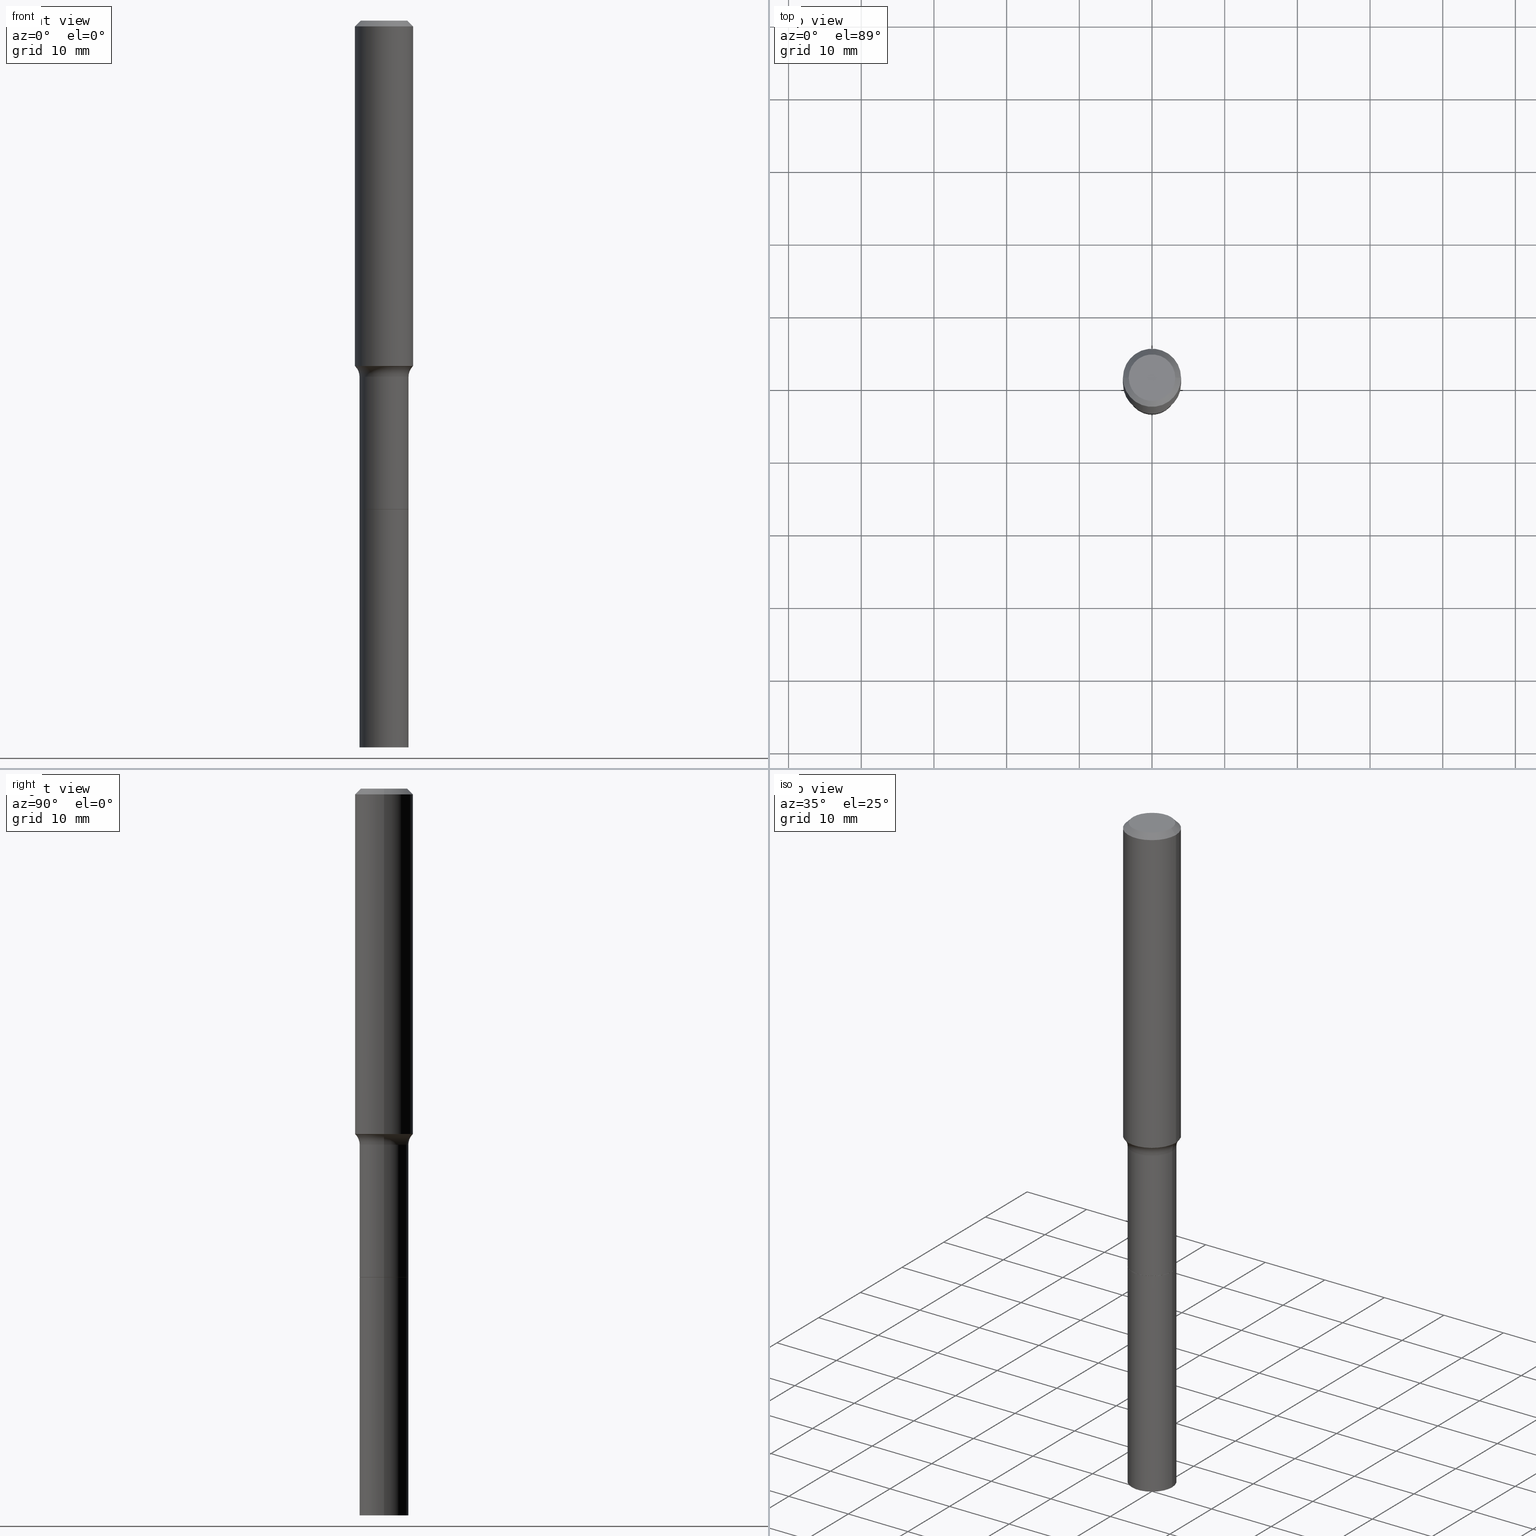
[diagram: canonical four-view strip — front | top / right | iso, engineering-drawing reading convention]
A machine part, canonical four-view strip (front | top / right | iso — engineering-drawing reading convention). The complete STEP part file that produces these views, byte-faithful:
ISO-10303-21;
HEADER;
FILE_DESCRIPTION (( 'STEP AP203' ),
    '1' );
FILE_NAME ('58891.STEP',
    '2025-04-01T15:26:33',
    ( '' ),
    ( '' ),
    'SwSTEP 2.0',
    'SolidWorks 2024',
    '' );
FILE_SCHEMA (( 'CONFIG_CONTROL_DESIGN' ));
ENDSEC;

DATA;
#1 = DIRECTION ( 'NONE',  ( 1.000000000000000000, -6.982962677686271444E-15, 0.000000000000000000 ) ) ;
#2 = AXIS2_PLACEMENT_3D ( 'NONE', #318, #120, #84 ) ;
#3 = VECTOR ( 'NONE', #135, 39.37007874015748143 ) ;
#4 = DIRECTION ( 'NONE',  ( 1.000000000000000000, -6.982962677686260400E-15, 0.000000000000000000 ) ) ;
#5 = DATE_AND_TIME ( #518, #390 ) ;
#6 = DIRECTION ( 'NONE',  ( 1.000000000000000000, -6.982962677686271444E-15, 0.000000000000000000 ) ) ;
#7 = ORIENTED_EDGE ( 'NONE', *, *, #244, .T. ) ;
#8 = EDGE_CURVE ( 'NONE', #509, #289, #37, .T. ) ;
#9 = EDGE_CURVE ( 'NONE', #55, #178, #395, .T. ) ;
#10 = DIRECTION ( 'NONE',  ( 1.000000000000000000, -6.982962677686264344E-15, 0.000000000000000000 ) ) ;
#11 = VECTOR ( 'NONE', #81, 39.37007874015748143 ) ;
#12 = ORIENTED_EDGE ( 'NONE', *, *, #23, .F. ) ;
#13 = CC_DESIGN_PERSON_AND_ORGANIZATION_ASSIGNMENT ( #404, #124, ( #90 ) ) ;
#14 = AXIS2_PLACEMENT_3D ( 'NONE', #470, #64, #26 ) ;
#15 = ORIENTED_EDGE ( 'NONE', *, *, #474, .T. ) ;
#16 = ORIENTED_EDGE ( 'NONE', *, *, #189, .F. ) ;
#17 = AXIS2_PLACEMENT_3D ( 'NONE', #507, #188, #309 ) ;
#18 = CIRCLE ( 'NONE', #389, 0.1575000000000000011 ) ;
#19 = ORIENTED_EDGE ( 'NONE', *, *, #71, .T. ) ;
#20 = CC_DESIGN_SECURITY_CLASSIFICATION ( #90, ( #171 ) ) ;
#21 = EDGE_LOOP ( 'NONE', ( #431, #294, #167, #405 ) ) ;
#22 = DIRECTION ( 'NONE',  ( 1.000000000000000000, -6.982962677686267499E-15, 4.876176775795936353E-29 ) ) ;
#23 = EDGE_CURVE ( 'NONE', #373, #168, #302, .T. ) ;
#24 = EDGE_CURVE ( 'NONE', #377, #101, #141, .T. ) ;
#25 = DIRECTION ( 'NONE',  ( 1.000000000000000000, -6.982962677686268288E-15, 0.000000000000000000 ) ) ;
#26 = DIRECTION ( 'NONE',  ( 1.000000000000000000, -6.982962677686264344E-15, 0.000000000000000000 ) ) ;
#27 = CARTESIAN_POINT ( 'NONE',  ( -4.719860820353096954E-47, 6.738710358733626979E-33, 1.930043355456227940E-18 ) ) ;
#28 = VECTOR ( 'NONE', #435, 39.37007874015748143 ) ;
#29 = CARTESIAN_POINT ( 'NONE',  ( 9.627810689950883669E-29, -1.374596203102546341E-14, -3.937000000000000277 ) ) ;
#30 = CARTESIAN_POINT ( 'NONE',  ( -0.1323000000000000009, -8.302745318671926953E-15, -2.648000000000000131 ) ) ;
#31 = CARTESIAN_POINT ( 'NONE',  ( 0.1575000000000000011, -1.190510096822576026E-15, -0.03150000000000022227 ) ) ;
#32 = PERSON_AND_ORGANIZATION ( #361, #358 ) ;
#33 = CARTESIAN_POINT ( 'NONE',  ( 4.717309327131129015E-29, -6.735067502628427403E-15, -1.929000000000000048 ) ) ;
#34 = DIRECTION ( 'NONE',  ( 1.000000000000000000, -6.982962677686260400E-15, 0.000000000000000000 ) ) ;
#35 = AXIS2_PLACEMENT_3D ( 'NONE', #164, #412, #488 ) ;
#36 = DIRECTION ( 'NONE',  ( -6.982962677686266711E-15, -1.000000000000000000, 3.491481338843145583E-15 ) ) ;
#37 = CIRCLE ( 'NONE', #102, 0.1327999999999999181 ) ;
#38 = DIRECTION ( 'NONE',  ( -2.445468806185136597E-29, 3.491481338843145583E-15, 1.000000000000000000 ) ) ;
#39 = FACE_OUTER_BOUND ( 'NONE', #237, .T. ) ;
#40 = APPROVAL ( #345, 'UNSPECIFIED' ) ;
#41 = DIRECTION ( 'NONE',  ( -2.445468806185136597E-29, 3.491481338843145583E-15, 1.000000000000000000 ) ) ;
#42 = MECHANICAL_CONTEXT ( 'NONE', #406, 'mechanical' ) ;
#43 = AXIS2_PLACEMENT_3D ( 'NONE', #160, #350, #401 ) ;
#44 = LOCAL_TIME ( 11, 26, 33.00000000000000000, #360 ) ;
#45 = DIRECTION ( 'NONE',  ( -2.445468806185136597E-29, 3.491481338843145583E-15, 1.000000000000000000 ) ) ;
#46 = EDGE_CURVE ( 'NONE', #494, #366, #508, .T. ) ;
#47 = ORIENTED_EDGE ( 'NONE', *, *, #510, .T. ) ;
#48 = ADVANCED_FACE ( 'NONE', ( #505 ), #250, .T. ) ;
#49 = FACE_OUTER_BOUND ( 'NONE', #468, .T. ) ;
#50 = ORIENTED_EDGE ( 'NONE', *, *, #133, .T. ) ;
#51 = AXIS2_PLACEMENT_3D ( 'NONE', #452, #247, #407 ) ;
#52 = ORIENTED_EDGE ( 'NONE', *, *, #296, .F. ) ;
#53 = SHAPE_DEFINITION_REPRESENTATION ( #96, #56 ) ;
#54 = VERTEX_POINT ( 'NONE', #140 ) ;
#55 = VERTEX_POINT ( 'NONE', #305 ) ;
#56 = ADVANCED_BREP_SHAPE_REPRESENTATION ( '58891', ( #455, #99, #372 ), #234 ) ;
#57 = FACE_OUTER_BOUND ( 'NONE', #246, .T. ) ;
#58 = EDGE_LOOP ( 'NONE', ( #7, #15, #74, #207 ) ) ;
#59 = ADVANCED_FACE ( 'NONE', ( #303 ), #300, .T. ) ;
#60 = LINE ( 'NONE', #476, #445 ) ;
#61 = VECTOR ( 'NONE', #240, 39.37007874015748143 ) ;
#62 = ORIENTED_EDGE ( 'NONE', *, *, #245, .T. ) ;
#63 = LINE ( 'NONE', #382, #190 ) ;
#64 = DIRECTION ( 'NONE',  ( -2.445468806185136597E-29, 3.491481338843145583E-15, 1.000000000000000000 ) ) ;
#65 = DIRECTION ( 'NONE',  ( -2.445468806185136597E-29, 3.491481338843145583E-15, 1.000000000000000000 ) ) ;
#66 = DIRECTION ( 'NONE',  ( 1.000000000000000000, -6.982962677686265133E-15, 0.000000000000000000 ) ) ;
#67 = FACE_OUTER_BOUND ( 'NONE', #256, .T. ) ;
#68 = CARTESIAN_POINT ( 'NONE',  ( 6.475601398778242345E-29, -9.245442585256650509E-15, -2.648000000000000131 ) ) ;
#69 = DIRECTION ( 'NONE',  ( -1.000000000000000000, 6.982962677686265922E-15, 0.000000000000000000 ) ) ;
#70 = ORIENTED_EDGE ( 'NONE', *, *, #46, .F. ) ;
#71 = EDGE_CURVE ( 'NONE', #285, #414, #92, .T. ) ;
#72 = AXIS2_PLACEMENT_3D ( 'NONE', #33, #346, #304 ) ;
#73 = DIRECTION ( 'NONE',  ( 1.000000000000000000, -6.982962677686265922E-15, 4.876176775795935793E-29 ) ) ;
#74 = ORIENTED_EDGE ( 'NONE', *, *, #413, .F. ) ;
#75 = AXIS2_PLACEMENT_3D ( 'NONE', #29, #181, #98 ) ;
#76 = DIRECTION ( 'NONE',  ( -2.445468806185136597E-29, 3.491481338843145583E-15, 1.000000000000000000 ) ) ;
#77 = DIRECTION ( 'NONE',  ( -2.445468806185136877E-29, 3.491481338843145188E-15, 1.000000000000000000 ) ) ;
#78 = CARTESIAN_POINT ( 'NONE',  ( 0.000000000000000000, 0.000000000000000000, 0.000000000000000000 ) ) ;
#79 = ADVANCED_FACE ( 'NONE', ( #308 ), #381, .F. ) ;
#80 = CARTESIAN_POINT ( 'NONE',  ( 0.1327999999999999181, -7.662404946225163231E-15, -1.929000000000000048 ) ) ;
#81 = DIRECTION ( 'NONE',  ( -2.445468806185136877E-29, 3.491481338843145188E-15, 1.000000000000000000 ) ) ;
#82 = CIRCLE ( 'NONE', #146, 0.1328000000000000014 ) ;
#83 = CC_DESIGN_APPROVAL ( #278, ( #90 ) ) ;
#84 = DIRECTION ( 'NONE',  ( 1.000000000000000000, -6.982962677686267499E-15, 4.876176775795936353E-29 ) ) ;
#85 = APPROVAL_DATE_TIME ( #491, #278 ) ;
#86 = ORIENTED_EDGE ( 'NONE', *, *, #111, .T. ) ;
#87 = PERSON_AND_ORGANIZATION_ROLE ( 'creator' ) ;
#88 = ORIENTED_EDGE ( 'NONE', *, *, #295, .F. ) ;
#89 = CIRCLE ( 'NONE', #503, 0.1328000000000000014 ) ;
#90 = SECURITY_CLASSIFICATION ( '', '', #165 ) ;
#91 = DATE_AND_TIME ( #204, #44 ) ;
#92 = CIRCLE ( 'NONE', #119, 0.1323000000000000009 ) ;
#93 = ORIENTED_EDGE ( 'NONE', *, *, #23, .T. ) ;
#94 = ORIENTED_EDGE ( 'NONE', *, *, #281, .T. ) ;
#95 = EDGE_LOOP ( 'NONE', ( #94, #253 ) ) ;
#96 = PRODUCT_DEFINITION_SHAPE ( 'NONE', 'NONE',  #396 ) ;
#97 = CC_DESIGN_APPROVAL ( #176, ( #171 ) ) ;
#98 = DIRECTION ( 'NONE',  ( 1.000000000000000000, -6.982962677686259611E-15, 0.000000000000000000 ) ) ;
#99 = MANIFOLD_SOLID_BREP ( 'Body-Move/Copy2[2]', #127 ) ;
#100 = LINE ( 'NONE', #466, #408 ) ;
#101 = VERTEX_POINT ( 'NONE', #106 ) ;
#102 = AXIS2_PLACEMENT_3D ( 'NONE', #143, #500, #25 ) ;
#103 = EDGE_CURVE ( 'NONE', #55, #494, #228, .T. ) ;
#104 = ORIENTED_EDGE ( 'NONE', *, *, #332, .F. ) ;
#105 = CARTESIAN_POINT ( 'NONE',  ( -0.1328000000000000014, -7.045781420518414556E-15, -2.647499999999999964 ) ) ;
#106 = CARTESIAN_POINT ( 'NONE',  ( -0.1328000000000002234, -1.055210155505163976E-14, -3.937000000000000277 ) ) ;
#107 = CIRCLE ( 'NONE', #417, 0.1260000000000000009 ) ;
#108 = DIRECTION ( 'NONE',  ( -2.445468806185136597E-29, 3.491481338843145583E-15, 1.000000000000000000 ) ) ;
#109 = EDGE_LOOP ( 'NONE', ( #416, #47, #70, #213 ) ) ;
#110 = DIRECTION ( 'NONE',  ( -2.445468806185136597E-29, 3.491481338843145583E-15, 1.000000000000000000 ) ) ;
#111 = EDGE_CURVE ( 'NONE', #285, #147, #297, .T. ) ;
#112 = DIRECTION ( 'NONE',  ( 1.000000000000000000, -6.982962677686265922E-15, 4.876281427513067258E-29 ) ) ;
#113 = DIRECTION ( 'NONE',  ( 0.000000000000000000, 0.000000000000000000, 1.000000000000000000 ) ) ;
#114 = UNCERTAINTY_MEASURE_WITH_UNIT (LENGTH_MEASURE( 1.000000000000000082E-05 ), #434, 'distance_accuracy_value', 'NONE');
#115 = DIRECTION ( 'NONE',  ( -0.7071067811864267805, 7.493145998869918709E-15, 0.7071067811866682540 ) ) ;
#116 = PLANE ( 'NONE',  #263 ) ;
#117 = COORDINATED_UNIVERSAL_TIME_OFFSET ( 5, 0, .BEHIND. ) ;
#118 = AXIS2_PLACEMENT_3D ( 'NONE', #355, #122, #482 ) ;
#119 = AXIS2_PLACEMENT_3D ( 'NONE', #258, #512, #34 ) ;
#120 = DIRECTION ( 'NONE',  ( -2.445468806185136597E-29, 3.491481338843145583E-15, 1.000000000000000000 ) ) ;
#121 = CARTESIAN_POINT ( 'NONE',  ( -0.1323000000000000009, -8.305394545846037365E-15, -2.648000000000000131 ) ) ;
#122 = DIRECTION ( 'NONE',  ( 7.105427357601001859E-15, 1.000000000000000000, -3.491481338843145583E-15 ) ) ;
#123 = LINE ( 'NONE', #243, #315 ) ;
#124 = PERSON_AND_ORGANIZATION_ROLE ( 'classification_officer' ) ;
#125 = AXIS2_PLACEMENT_3D ( 'NONE', #261, #139, #69 ) ;
#126 = ORIENTED_EDGE ( 'NONE', *, *, #433, .T. ) ;
#127 = CLOSED_SHELL ( 'NONE', ( #257, #48, #506, #490, #293, #357, #151, #386, #331, #170, #430, #451, #280, #371 ) ) ;
#128 = DESIGN_CONTEXT ( 'detailed design', #436, 'design' ) ;
#129 = ORIENTED_EDGE ( 'NONE', *, *, #348, .T. ) ;
#130 = ORIENTED_EDGE ( 'NONE', *, *, #227, .F. ) ;
#131 = CONICAL_SURFACE ( 'NONE', #51, 0.1323000000000000009, 0.7853981633972775267 ) ;
#132 = ORIENTED_EDGE ( 'NONE', *, *, #152, .T. ) ;
#133 = EDGE_CURVE ( 'NONE', #168, #289, #481, .T. ) ;
#134 = ORIENTED_EDGE ( 'NONE', *, *, #262, .T. ) ;
#135 = DIRECTION ( 'NONE',  ( 0.7071067811865449082, -7.319954787623246579E-15, -0.7071067811865501263 ) ) ;
#136 = DIRECTION ( 'NONE',  ( 1.000000000000000000, -6.982962677686264344E-15, 0.000000000000000000 ) ) ;
#137 = TOROIDAL_SURFACE ( 'NONE', #284, 0.2127999999999999059, 0.08000000000000007105 ) ;
#138 = CARTESIAN_POINT ( 'NONE',  ( 7.703226739483234853E-31, -1.099816621735598648E-16, -0.03150000000000022227 ) ) ;
#139 = DIRECTION ( 'NONE',  ( 2.445468806185136597E-29, -3.491481338843145583E-15, -1.000000000000000000 ) ) ;
#140 = CARTESIAN_POINT ( 'NONE',  ( -0.1328000000000000014, -1.055210155505164292E-14, -2.648000000000000131 ) ) ;
#141 = CIRCLE ( 'NONE', #75, 0.1328000000000002234 ) ;
#142 = FACE_OUTER_BOUND ( 'NONE', #292, .T. ) ;
#143 = CARTESIAN_POINT ( 'NONE',  ( 4.717309327131129015E-29, -6.735067502628427403E-15, -1.929000000000000048 ) ) ;
#144 = DIRECTION ( 'NONE',  ( -2.445468806185136597E-29, 3.491481338843145583E-15, 1.000000000000000000 ) ) ;
#145 = CC_DESIGN_PERSON_AND_ORGANIZATION_ASSIGNMENT ( #513, #148, ( #396 ) ) ;
#146 = AXIS2_PLACEMENT_3D ( 'NONE', #340, #65, #222 ) ;
#147 = VERTEX_POINT ( 'NONE', #483 ) ;
#148 = PERSON_AND_ORGANIZATION_ROLE ( 'creator' ) ;
#149 = CC_DESIGN_APPROVAL ( #40, ( #396 ) ) ;
#150 = PLANE ( 'NONE',  #489 ) ;
#151 = ADVANCED_FACE ( 'NONE', ( #320 ), #197, .T. ) ;
#152 = EDGE_CURVE ( 'NONE', #377, #425, #486, .T. ) ;
#153 = DIRECTION ( 'NONE',  ( 1.000000000000000000, -6.982962677686260400E-15, 0.000000000000000000 ) ) ;
#154 = VECTOR ( 'NONE', #77, 39.37007874015748143 ) ;
#155 = DIRECTION ( 'NONE',  ( 1.000000000000000000, -6.982962677686277755E-15, 0.000000000000000000 ) ) ;
#156 = CARTESIAN_POINT ( 'NONE',  ( 0.1575000000000000844, -1.099816621735587677E-15, 7.679978421878603638E-30 ) ) ;
#157 = APPROVAL_ROLE ( '' ) ;
#158 = EDGE_LOOP ( 'NONE', ( #393, #497, #369, #169 ) ) ;
#159 = CONICAL_SURFACE ( 'NONE', #480, 0.1542917038704660626, 0.7504915783575861754 ) ;
#160 = CARTESIAN_POINT ( 'NONE',  ( 9.627810689950883669E-29, -1.374596203102546341E-14, -3.937000000000000277 ) ) ;
#161 = CARTESIAN_POINT ( 'NONE',  ( 4.717309327131129015E-29, -6.735067502628427403E-15, -1.929000000000000048 ) ) ;
#162 = CARTESIAN_POINT ( 'NONE',  ( 0.1323000000000000009, -1.016928854751454175E-14, -2.648000000000000131 ) ) ;
#163 = ORIENTED_EDGE ( 'NONE', *, *, #103, .T. ) ;
#164 = CARTESIAN_POINT ( 'NONE',  ( 0.000000000000000000, 0.000000000000000000, 0.000000000000000000 ) ) ;
#165 = SECURITY_CLASSIFICATION_LEVEL ( 'unclassified' ) ;
#166 = EDGE_CURVE ( 'NONE', #365, #494, #447, .T. ) ;
#167 = ORIENTED_EDGE ( 'NONE', *, *, #205, .T. ) ;
#168 = VERTEX_POINT ( 'NONE', #444 ) ;
#169 = ORIENTED_EDGE ( 'NONE', *, *, #8, .F. ) ;
#170 = ADVANCED_FACE ( 'NONE', ( #39 ), #516, .T. ) ;
#171 = PRODUCT_DEFINITION_FORMATION_WITH_SPECIFIED_SOURCE ( 'ANY', '', #174, .NOT_KNOWN. ) ;
#172 = ORIENTED_EDGE ( 'NONE', *, *, #296, .T. ) ;
#173 = ORIENTED_EDGE ( 'NONE', *, *, #111, .F. ) ;
#174 = PRODUCT ( '58891', '58891', '', ( #42 ) ) ;
#175 = CARTESIAN_POINT ( 'NONE',  ( -0.1327999999999999181, -7.045781420518415345E-15, -1.929000000000000048 ) ) ;
#176 = APPROVAL ( #432, 'UNSPECIFIED' ) ;
#177 = LINE ( 'NONE', #485, #322 ) ;
#178 = VERTEX_POINT ( 'NONE', #316 ) ;
#179 = FACE_OUTER_BOUND ( 'NONE', #95, .T. ) ;
#180 = AXIS2_PLACEMENT_3D ( 'NONE', #374, #298, #136 ) ;
#181 = DIRECTION ( 'NONE',  ( -2.445468806185136597E-29, 3.491481338843145583E-15, 1.000000000000000000 ) ) ;
#182 = AXIS2_PLACEMENT_3D ( 'NONE', #68, #184, #225 ) ;
#183 = FACE_OUTER_BOUND ( 'NONE', #21, .T. ) ;
#184 = DIRECTION ( 'NONE',  ( 2.438088387897960049E-29, -3.491481338843145188E-15, -1.000000000000000000 ) ) ;
#185 = PRODUCT_RELATED_PRODUCT_CATEGORY ( 'detail', '', ( #174 ) ) ;
#186 = EDGE_LOOP ( 'NONE', ( #130, #62, #132, #328 ) ) ;
#187 = EDGE_CURVE ( 'NONE', #365, #460, #241, .T. ) ;
#188 = DIRECTION ( 'NONE',  ( -2.445468806185136597E-29, 3.491481338843145583E-15, 1.000000000000000000 ) ) ;
#189 = EDGE_CURVE ( 'NONE', #373, #509, #427, .T. ) ;
#190 = VECTOR ( 'NONE', #429, 39.37007874015748143 ) ;
#191 = DIRECTION ( 'NONE',  ( -2.445468806185136597E-29, 3.491481338843145583E-15, 1.000000000000000000 ) ) ;
#192 = LOCAL_TIME ( 11, 26, 33.00000000000000000, #493 ) ;
#193 = CARTESIAN_POINT ( 'NONE',  ( 0.000000000000000000, 0.000000000000000000, 0.000000000000000000 ) ) ;
#194 = ORIENTED_EDGE ( 'NONE', *, *, #220, .F. ) ;
#195 = CLOSED_SHELL ( 'NONE', ( #459, #449, #59, #79 ) ) ;
#196 = DIRECTION ( 'NONE',  ( -2.445468806185136597E-29, 3.491481338843145583E-15, 1.000000000000000000 ) ) ;
#197 = CYLINDRICAL_SURFACE ( 'NONE', #330, 0.1327999999999999459 ) ;
#198 = CARTESIAN_POINT ( 'NONE',  ( 6.474378664375149544E-29, -9.243696844587228217E-15, -2.647499999999999964 ) ) ;
#199 = APPLICATION_PROTOCOL_DEFINITION ( 'international standard', 'config_control_design', 1994, #436 ) ;
#200 = CIRCLE ( 'NONE', #17, 0.1327999999999999181 ) ;
#201 = DIRECTION ( 'NONE',  ( 1.000000000000000000, -6.982962677686271444E-15, 0.000000000000000000 ) ) ;
#202 = DATE_AND_TIME ( #211, #446 ) ;
#203 = DIRECTION ( 'NONE',  ( -2.445468806185136597E-29, 3.491481338843145583E-15, 1.000000000000000000 ) ) ;
#204 = CALENDAR_DATE ( 2025, 1, 4 ) ;
#205 = EDGE_CURVE ( 'NONE', #178, #366, #276, .T. ) ;
#206 = EDGE_CURVE ( 'NONE', #168, #365, #123, .T. ) ;
#207 = ORIENTED_EDGE ( 'NONE', *, *, #388, .F. ) ;
#208 = AXIS2_PLACEMENT_3D ( 'NONE', #471, #108, #22 ) ;
#209 = AXIS2_PLACEMENT_3D ( 'NONE', #138, #264, #462 ) ;
#210 = ORIENTED_EDGE ( 'NONE', *, *, #71, .F. ) ;
#211 = CALENDAR_DATE ( 2025, 1, 4 ) ;
#212 = ORIENTED_EDGE ( 'NONE', *, *, #133, .F. ) ;
#213 = ORIENTED_EDGE ( 'NONE', *, *, #166, .F. ) ;
#214 = CIRCLE ( 'NONE', #272, 0.1328000000000000014 ) ;
#215 = ORIENTED_EDGE ( 'NONE', *, *, #46, .T. ) ;
#216 = CC_DESIGN_DATE_AND_TIME_ASSIGNMENT ( #91, #487, ( #90 ) ) ;
#217 = CYLINDRICAL_SURFACE ( 'NONE', #307, 0.1328000000000001124 ) ;
#218 = ORIENTED_EDGE ( 'NONE', *, *, #205, .F. ) ;
#219 = CARTESIAN_POINT ( 'NONE',  ( 0.1328000000000000014, -1.017278002885338791E-14, -2.648000000000000131 ) ) ;
#220 = EDGE_CURVE ( 'NONE', #414, #285, #327, .T. ) ;
#221 = ORIENTED_EDGE ( 'NONE', *, *, #413, .T. ) ;
#222 = DIRECTION ( 'NONE',  ( 1.000000000000000000, -6.982962677686271444E-15, 0.000000000000000000 ) ) ;
#223 = CIRCLE ( 'NONE', #249, 0.1542917038704660626 ) ;
#224 = APPROVAL_PERSON_ORGANIZATION ( #351, #40, #157 ) ;
#225 = DIRECTION ( 'NONE',  ( -1.000000000000000000, 6.982962677686265922E-15, -4.876176775795935793E-29 ) ) ;
#226 = DIRECTION ( 'NONE',  ( -1.000000000000000000, 6.982962677686265922E-15, -4.876176775795935793E-29 ) ) ;
#227 = EDGE_CURVE ( 'NONE', #101, #54, #270, .T. ) ;
#228 = LINE ( 'NONE', #31, #3 ) ;
#229 = CARTESIAN_POINT ( 'NONE',  ( 0.1575000000000000011, -1.209798283909146741E-15, -0.03150000000000022227 ) ) ;
#230 = DIRECTION ( 'NONE',  ( 1.000000000000000000, -6.982962677686264344E-15, 0.000000000000000000 ) ) ;
#231 = VECTOR ( 'NONE', #115, 39.37007874015748143 ) ;
#232 = DIRECTION ( 'NONE',  ( 1.000000000000000000, -6.982962677686266711E-15, 4.876176775795935232E-29 ) ) ;
#233 = DIRECTION ( 'NONE',  ( 1.000000000000000000, 0.000000000000000000, 0.000000000000000000 ) ) ;
#234 =( GEOMETRIC_REPRESENTATION_CONTEXT ( 3 ) GLOBAL_UNCERTAINTY_ASSIGNED_CONTEXT ( ( #114 ) ) GLOBAL_UNIT_ASSIGNED_CONTEXT ( ( #434, #387, #342 ) ) REPRESENTATION_CONTEXT ( 'NONE', 'WORKASPACE' ) );
#235 = ORIENTED_EDGE ( 'NONE', *, *, #220, .T. ) ;
#236 = CARTESIAN_POINT ( 'NONE',  ( -9.439721640706193907E-47, 1.347742071746725396E-32, 3.860086710912455880E-18 ) ) ;
#237 = EDGE_LOOP ( 'NONE', ( #492, #134, #475, #457 ) ) ;
#238 = FACE_OUTER_BOUND ( 'NONE', #461, .T. ) ;
#239 = DIRECTION ( 'NONE',  ( -0.7071067811865449082, 2.468850131082229450E-15, -0.7071067811865501263 ) ) ;
#240 = DIRECTION ( 'NONE',  ( -2.445468806185136877E-29, 3.491481338843145188E-15, 1.000000000000000000 ) ) ;
#241 = CIRCLE ( 'NONE', #496, 0.1575000000000002232 ) ;
#242 = AXIS2_PLACEMENT_3D ( 'NONE', #349, #196, #442 ) ;
#243 = CARTESIAN_POINT ( 'NONE',  ( 0.1542917038704660626, -7.621985948450125538E-15, -1.874440131195000081 ) ) ;
#244 = EDGE_CURVE ( 'NONE', #147, #454, #89, .T. ) ;
#245 = EDGE_CURVE ( 'NONE', #101, #377, #364, .T. ) ;
#246 = EDGE_LOOP ( 'NONE', ( #52, #235, #86, #288 ) ) ;
#247 = DIRECTION ( 'NONE',  ( -2.445468806185136597E-29, 3.491481338843145583E-15, 1.000000000000000000 ) ) ;
#248 = ORIENTED_EDGE ( 'NONE', *, *, #227, .T. ) ;
#249 = AXIS2_PLACEMENT_3D ( 'NONE', #329, #203, #10 ) ;
#250 = CONICAL_SURFACE ( 'NONE', #209, 0.1575000000000000011, 0.7853981633974446153 ) ;
#251 = APPROVAL_PERSON_ORGANIZATION ( #448, #278, #321 ) ;
#252 = ORIENTED_EDGE ( 'NONE', *, *, #187, .F. ) ;
#253 = ORIENTED_EDGE ( 'NONE', *, *, #9, .T. ) ;
#254 = ORIENTED_EDGE ( 'NONE', *, *, #152, .F. ) ;
#255 = AXIS2_PLACEMENT_3D ( 'NONE', #419, #515, #226 ) ;
#256 = EDGE_LOOP ( 'NONE', ( #129, #423, #252, #498 ) ) ;
#257 = ADVANCED_FACE ( 'NONE', ( #282 ), #291, .T. ) ;
#258 = CARTESIAN_POINT ( 'NONE',  ( 6.475601398778242345E-29, -9.245442585256650509E-15, -2.648000000000000131 ) ) ;
#259 = DIRECTION ( 'NONE',  ( 2.438088387897960049E-29, -3.491481338843145188E-15, -1.000000000000000000 ) ) ;
#260 = CARTESIAN_POINT ( 'NONE',  ( 6.475601398778242345E-29, -9.245442585256650509E-15, -2.648000000000000131 ) ) ;
#261 = CARTESIAN_POINT ( 'NONE',  ( 7.703226739483234853E-31, -1.099816621735598648E-16, -0.03150000000000022227 ) ) ;
#262 = EDGE_CURVE ( 'NONE', #460, #365, #379, .T. ) ;
#263 = AXIS2_PLACEMENT_3D ( 'NONE', #273, #439, #73 ) ;
#264 = DIRECTION ( 'NONE',  ( 2.445468806185136597E-29, -3.491481338843145583E-15, -1.000000000000000000 ) ) ;
#265 = CARTESIAN_POINT ( 'NONE',  ( 0.1328000000000002234, -1.467329947462220082E-14, -3.937000000000000277 ) ) ;
#266 = CARTESIAN_POINT ( 'NONE',  ( 4.583884869898947563E-29, -6.544572738846040132E-15, -1.874440131195000081 ) ) ;
#267 = CARTESIAN_POINT ( 'NONE',  ( -9.439721640706193907E-47, 1.347742071746725396E-32, 3.860086710912455880E-18 ) ) ;
#268 = PERSON_AND_ORGANIZATION ( #361, #358 ) ;
#269 = LENGTH_MEASURE_WITH_UNIT ( LENGTH_MEASURE( 0.02539999999999999897 ), #422 );
#270 = LINE ( 'NONE', #279, #11 ) ;
#271 = CARTESIAN_POINT ( 'NONE',  ( 7.703226739483234853E-31, -1.099816621735598648E-16, -0.03150000000000022227 ) ) ;
#272 = AXIS2_PLACEMENT_3D ( 'NONE', #378, #110, #336 ) ;
#273 = CARTESIAN_POINT ( 'NONE',  ( 6.475601398778242345E-29, -9.245442585256650509E-15, -2.648000000000000131 ) ) ;
#274 = CALENDAR_DATE ( 2025, 1, 4 ) ;
#275 = DIRECTION ( 'NONE',  ( -2.445468806185136597E-29, 3.491481338843145583E-15, 1.000000000000000000 ) ) ;
#276 = LINE ( 'NONE', #313, #514 ) ;
#277 = AXIS2_PLACEMENT_3D ( 'NONE', #502, #383, #230 ) ;
#278 = APPROVAL ( #324, 'UNSPECIFIED' ) ;
#279 = CARTESIAN_POINT ( 'NONE',  ( -0.1328000000000001124, -8.301841832167235678E-15, -2.648000000000000131 ) ) ;
#280 = ADVANCED_FACE ( 'NONE', ( #49 ), #116, .F. ) ;
#281 = EDGE_CURVE ( 'NONE', #178, #55, #107, .T. ) ;
#282 = FACE_OUTER_BOUND ( 'NONE', #344, .T. ) ;
#283 = PERSON_AND_ORGANIZATION_ROLE ( 'design_supplier' ) ;
#284 = AXIS2_PLACEMENT_3D ( 'NONE', #161, #275, #312 ) ;
#285 = VERTEX_POINT ( 'NONE', #317 ) ;
#286 = CARTESIAN_POINT ( 'NONE',  ( 0.1575000000000002232, -7.632377001497823742E-15, -1.870999654813194413 ) ) ;
#287 = APPROVAL_ROLE ( '' ) ;
#288 = ORIENTED_EDGE ( 'NONE', *, *, #473, .F. ) ;
#289 = VERTEX_POINT ( 'NONE', #80 ) ;
#290 = FACE_OUTER_BOUND ( 'NONE', #58, .T. ) ;
#291 = CONICAL_SURFACE ( 'NONE', #354, 0.1323000000000000009, 0.7853981633972775267 ) ;
#292 = EDGE_LOOP ( 'NONE', ( #16, #450, #50, #221 ) ) ;
#293 = ADVANCED_FACE ( 'NONE', ( #238 ), #137, .F. ) ;
#294 = ORIENTED_EDGE ( 'NONE', *, *, #281, .F. ) ;
#295 = EDGE_CURVE ( 'NONE', #425, #54, #472, .T. ) ;
#296 = EDGE_CURVE ( 'NONE', #414, #454, #478, .T. ) ;
#297 = LINE ( 'NONE', #162, #28 ) ;
#298 = DIRECTION ( 'NONE',  ( -2.445468806185136597E-29, 3.491481338843145583E-15, 1.000000000000000000 ) ) ;
#299 = TOROIDAL_SURFACE ( 'NONE', #72, 0.2127999999999999059, 0.08000000000000007105 ) ;
#300 = CYLINDRICAL_SURFACE ( 'NONE', #338, 0.1328000000000001124 ) ;
#301 = CARTESIAN_POINT ( 'NONE',  ( 6.475601398778242345E-29, -9.245442585256650509E-15, -2.648000000000000131 ) ) ;
#302 = CIRCLE ( 'NONE', #14, 0.1542917038704660626 ) ;
#303 = FACE_OUTER_BOUND ( 'NONE', #186, .T. ) ;
#304 = DIRECTION ( 'NONE',  ( 1.000000000000000000, -6.982962677686269077E-15, 4.883557194083114022E-29 ) ) ;
#305 = CARTESIAN_POINT ( 'NONE',  ( 0.1260000000000000009, -1.027466422270894443E-15, 3.860086710919124220E-18 ) ) ;
#306 = CARTESIAN_POINT ( 'NONE',  ( -0.1575000000000002232, -5.413455570940076292E-15, -1.870999654813194413 ) ) ;
#307 = AXIS2_PLACEMENT_3D ( 'NONE', #301, #144, #501 ) ;
#308 = FACE_OUTER_BOUND ( 'NONE', #409, .T. ) ;
#309 = DIRECTION ( 'NONE',  ( 1.000000000000000000, -6.982962677686268288E-15, 0.000000000000000000 ) ) ;
#310 = CC_DESIGN_PERSON_AND_ORGANIZATION_ASSIGNMENT ( #32, #392, ( #174 ) ) ;
#311 = EDGE_CURVE ( 'NONE', #366, #494, #18, .T. ) ;
#312 = DIRECTION ( 'NONE',  ( 1.000000000000000000, -6.982962677686269077E-15, 4.883557194083114022E-29 ) ) ;
#313 = CARTESIAN_POINT ( 'NONE',  ( -0.1575000000000000011, 9.898349595620270362E-16, -0.03150000000000022227 ) ) ;
#314 = APPROVAL_DATE_TIME ( #5, #40 ) ;
#315 = VECTOR ( 'NONE', #397, 39.37007874015748143 ) ;
#316 = CARTESIAN_POINT ( 'NONE',  ( -0.1260000000000000009, 9.348441284752482932E-16, 3.860086710906110326E-18 ) ) ;
#317 = CARTESIAN_POINT ( 'NONE',  ( 0.1323000000000000009, -1.016928854751454175E-14, -2.648000000000000131 ) ) ;
#318 = CARTESIAN_POINT ( 'NONE',  ( 0.000000000000000000, 0.000000000000000000, 0.000000000000000000 ) ) ;
#319 = DIRECTION ( 'NONE',  ( 1.000000000000000000, -6.982962677686264344E-15, 0.000000000000000000 ) ) ;
#320 = FACE_OUTER_BOUND ( 'NONE', #158, .T. ) ;
#321 = APPROVAL_ROLE ( '' ) ;
#322 = VECTOR ( 'NONE', #363, 39.37007874015748143 ) ;
#323 = EDGE_LOOP ( 'NONE', ( #325, #163, #215, #218 ) ) ;
#324 = APPROVAL_STATUS ( 'not_yet_approved' ) ;
#325 = ORIENTED_EDGE ( 'NONE', *, *, #9, .F. ) ;
#326 = EDGE_LOOP ( 'NONE', ( #428, #248, #88, #254 ) ) ;
#327 = CIRCLE ( 'NONE', #400, 0.1323000000000000009 ) ;
#328 = ORIENTED_EDGE ( 'NONE', *, *, #433, .F. ) ;
#329 = CARTESIAN_POINT ( 'NONE',  ( 4.583884869898947563E-29, -6.544572738846040132E-15, -1.874440131195000081 ) ) ;
#330 = AXIS2_PLACEMENT_3D ( 'NONE', #193, #347, #232 ) ;
#331 = ADVANCED_FACE ( 'NONE', ( #438 ), #159, .T. ) ;
#332 = EDGE_CURVE ( 'NONE', #373, #460, #177, .T. ) ;
#333 = ORIENTED_EDGE ( 'NONE', *, *, #244, .F. ) ;
#334 = DIRECTION ( 'NONE',  ( -2.445468806185136877E-29, 3.491481338843145188E-15, 1.000000000000000000 ) ) ;
#335 = ORIENTED_EDGE ( 'NONE', *, *, #262, .F. ) ;
#336 = DIRECTION ( 'NONE',  ( 1.000000000000000000, -6.982962677686271444E-15, 0.000000000000000000 ) ) ;
#337 = LOCAL_TIME ( 11, 26, 33.00000000000000000, #117 ) ;
#338 = AXIS2_PLACEMENT_3D ( 'NONE', #260, #191, #66 ) ;
#339 = EDGE_LOOP ( 'NONE', ( #104, #93, #421, #335 ) ) ;
#340 = CARTESIAN_POINT ( 'NONE',  ( 6.474378664375149544E-29, -9.243696844587228217E-15, -2.647499999999999964 ) ) ;
#341 = ORIENTED_EDGE ( 'NONE', *, *, #24, .F. ) ;
#342 =( NAMED_UNIT ( * ) SI_UNIT ( $, .STERADIAN. ) SOLID_ANGLE_UNIT ( ) );
#343 = FACE_OUTER_BOUND ( 'NONE', #441, .T. ) ;
#344 = EDGE_LOOP ( 'NONE', ( #19, #172, #333, #173 ) ) ;
#345 = APPROVAL_STATUS ( 'not_yet_approved' ) ;
#346 = DIRECTION ( 'NONE',  ( -2.445468806185136597E-29, 3.491481338843145583E-15, 1.000000000000000000 ) ) ;
#347 = DIRECTION ( 'NONE',  ( -2.445468806185136597E-29, 3.491481338843145583E-15, 1.000000000000000000 ) ) ;
#348 = EDGE_CURVE ( 'NONE', #168, #373, #223, .T. ) ;
#349 = CARTESIAN_POINT ( 'NONE',  ( 6.475601398778242345E-29, -9.245442585256650509E-15, -2.648000000000000131 ) ) ;
#350 = DIRECTION ( 'NONE',  ( -2.445468806185136597E-29, 3.491481338843145583E-15, 1.000000000000000000 ) ) ;
#351 = PERSON_AND_ORGANIZATION ( #361, #358 ) ;
#352 = CARTESIAN_POINT ( 'NONE',  ( 0.2127999999999999059, -8.221041960440064884E-15, -1.929000000000000048 ) ) ;
#353 = DATE_TIME_ROLE ( 'creation_date' ) ;
#354 = AXIS2_PLACEMENT_3D ( 'NONE', #517, #359, #153 ) ;
#355 = CARTESIAN_POINT ( 'NONE',  ( -0.2127999999999999059, -5.223032560930935862E-15, -1.929000000000000048 ) ) ;
#356 = COORDINATED_UNIVERSAL_TIME_OFFSET ( 5, 0, .BEHIND. ) ;
#357 = ADVANCED_FACE ( 'NONE', ( #290 ), #458, .T. ) ;
#358 = ORGANIZATION ( 'UNSPECIFIED', 'UNSPECIFIED', '' ) ;
#359 = DIRECTION ( 'NONE',  ( -2.445468806185136597E-29, 3.491481338843145583E-15, 1.000000000000000000 ) ) ;
#360 = COORDINATED_UNIVERSAL_TIME_OFFSET ( 5, 0, .BEHIND. ) ;
#361 = PERSON ( 'UNSPECIFIED', 'UNSPECIFIED', 'UNSPECIFIED', ('UNSPECIFIED'), ('UNSPECIFIED'), ('UNSPECIFIED') ) ;
#362 = ORIENTED_EDGE ( 'NONE', *, *, #295, .T. ) ;
#363 = DIRECTION ( 'NONE',  ( -0.6819983600625163511, 7.399397606724355996E-15, 0.7313537016191538065 ) ) ;
#364 = CIRCLE ( 'NONE', #43, 0.1328000000000002234 ) ;
#365 = VERTEX_POINT ( 'NONE', #286 ) ;
#366 = VERTEX_POINT ( 'NONE', #415 ) ;
#367 = PERSON_AND_ORGANIZATION ( #361, #358 ) ;
#368 = CC_DESIGN_PERSON_AND_ORGANIZATION_ASSIGNMENT ( #402, #87, ( #171 ) ) ;
#369 = ORIENTED_EDGE ( 'NONE', *, *, #388, .T. ) ;
#370 = ORIENTED_EDGE ( 'NONE', *, *, #245, .F. ) ;
#371 = ADVANCED_FACE ( 'NONE', ( #57 ), #131, .T. ) ;
#372 = AXIS2_PLACEMENT_3D ( 'NONE', #78, #113, #233 ) ;
#373 = VERTEX_POINT ( 'NONE', #504 ) ;
#374 = CARTESIAN_POINT ( 'NONE',  ( 4.583884869898947563E-29, -6.544572738846040132E-15, -1.874440131195000081 ) ) ;
#375 = DIRECTION ( 'NONE',  ( 1.000000000000000000, -6.982962677686264344E-15, 0.000000000000000000 ) ) ;
#376 = ORIENTED_EDGE ( 'NONE', *, *, #8, .T. ) ;
#377 = VERTEX_POINT ( 'NONE', #265 ) ;
#378 = CARTESIAN_POINT ( 'NONE',  ( 6.475601398778242345E-29, -9.245442585256650509E-15, -2.648000000000000131 ) ) ;
#379 = CIRCLE ( 'NONE', #456, 0.1575000000000002232 ) ;
#380 = AXIS2_PLACEMENT_3D ( 'NONE', #352, #36, #155 ) ;
#381 = PLANE ( 'NONE',  #182 ) ;
#382 = CARTESIAN_POINT ( 'NONE',  ( 0.1327999999999999459, -9.273374435967358279E-16, 6.475562758256999504E-30 ) ) ;
#383 = DIRECTION ( 'NONE',  ( -2.445468806185136597E-29, 3.491481338843145583E-15, 1.000000000000000000 ) ) ;
#384 = CYLINDRICAL_SURFACE ( 'NONE', #208, 0.1575000000000000844 ) ;
#385 = DIRECTION ( 'NONE',  ( -2.445468806185136597E-29, 3.491481338843145583E-15, 1.000000000000000000 ) ) ;
#386 = ADVANCED_FACE ( 'NONE', ( #142 ), #299, .F. ) ;
#387 =( NAMED_UNIT ( * ) PLANE_ANGLE_UNIT ( ) SI_UNIT ( $, .RADIAN. ) );
#388 = EDGE_CURVE ( 'NONE', #147, #289, #63, .T. ) ;
#389 = AXIS2_PLACEMENT_3D ( 'NONE', #271, #38, #319 ) ;
#390 = LOCAL_TIME ( 11, 26, 33.00000000000000000, #356 ) ;
#391 = CARTESIAN_POINT ( 'NONE',  ( 4.575471292228825010E-29, -6.532560379762235473E-15, -1.870999654813194413 ) ) ;
#392 = PERSON_AND_ORGANIZATION_ROLE ( 'design_owner' ) ;
#393 = ORIENTED_EDGE ( 'NONE', *, *, #474, .F. ) ;
#394 = CARTESIAN_POINT ( 'NONE',  ( 0.1328000000000001124, -1.017278002885338791E-14, -2.648000000000000131 ) ) ;
#395 = CIRCLE ( 'NONE', #467, 0.1260000000000000009 ) ;
#396 = PRODUCT_DEFINITION ( 'UNKNOWN', '', #171, #128 ) ;
#397 = DIRECTION ( 'NONE',  ( 0.6819983600625163511, -2.208861293262658819E-15, 0.7313537016191538065 ) ) ;
#398 = APPLICATION_PROTOCOL_DEFINITION ( 'international standard', 'config_control_design', 1994, #406 ) ;
#399 = DIMENSIONAL_EXPONENTS ( 1.000000000000000000, 0.000000000000000000, 0.000000000000000000, 0.000000000000000000, 0.000000000000000000, 0.000000000000000000, 0.000000000000000000 ) ;
#400 = AXIS2_PLACEMENT_3D ( 'NONE', #477, #41, #4 ) ;
#401 = DIRECTION ( 'NONE',  ( 1.000000000000000000, -6.982962677686259611E-15, 0.000000000000000000 ) ) ;
#402 = PERSON_AND_ORGANIZATION ( #361, #358 ) ;
#403 = DIRECTION ( 'NONE',  ( -2.445468806185136597E-29, 3.491481338843145583E-15, 1.000000000000000000 ) ) ;
#404 = PERSON_AND_ORGANIZATION ( #361, #358 ) ;
#405 = ORIENTED_EDGE ( 'NONE', *, *, #311, .T. ) ;
#406 = APPLICATION_CONTEXT ( 'configuration controlled 3d designs of mechanical parts and assemblies' ) ;
#407 = DIRECTION ( 'NONE',  ( 1.000000000000000000, -6.982962677686260400E-15, 0.000000000000000000 ) ) ;
#408 = VECTOR ( 'NONE', #334, 39.37007874015748143 ) ;
#409 = EDGE_LOOP ( 'NONE', ( #362, #126 ) ) ;
#410 = CALENDAR_DATE ( 2025, 1, 4 ) ;
#411 = ORIENTED_EDGE ( 'NONE', *, *, #189, .T. ) ;
#412 = DIRECTION ( 'NONE',  ( -2.445468806185136597E-29, 3.491481338843145583E-15, 1.000000000000000000 ) ) ;
#413 = EDGE_CURVE ( 'NONE', #289, #509, #200, .T. ) ;
#414 = VERTEX_POINT ( 'NONE', #30 ) ;
#415 = CARTESIAN_POINT ( 'NONE',  ( -0.1575000000000000011, -2.202166212145738679E-15, -0.03150000000000022227 ) ) ;
#416 = ORIENTED_EDGE ( 'NONE', *, *, #187, .T. ) ;
#417 = AXIS2_PLACEMENT_3D ( 'NONE', #236, #76, #112 ) ;
#418 = APPROVAL_PERSON_ORGANIZATION ( #268, #176, #287 ) ;
#419 = CARTESIAN_POINT ( 'NONE',  ( 9.627810689950883669E-29, -1.374596203102546341E-14, -3.937000000000000277 ) ) ;
#420 = DIRECTION ( 'NONE',  ( -2.445468806185136597E-29, 3.491481338843145583E-15, 1.000000000000000000 ) ) ;
#421 = ORIENTED_EDGE ( 'NONE', *, *, #206, .T. ) ;
#422 =( LENGTH_UNIT ( ) NAMED_UNIT ( * ) SI_UNIT ( $, .METRE. ) );
#423 = ORIENTED_EDGE ( 'NONE', *, *, #332, .T. ) ;
#424 = DIRECTION ( 'NONE',  ( -1.000000000000000000, 6.982962677686265922E-15, -4.876176775795935793E-29 ) ) ;
#425 = VERTEX_POINT ( 'NONE', #219 ) ;
#426 = DIRECTION ( 'NONE',  ( -2.445468806185136877E-29, 3.491481338843145188E-15, 1.000000000000000000 ) ) ;
#427 = CIRCLE ( 'NONE', #118, 0.08000000000000007105 ) ;
#428 = ORIENTED_EDGE ( 'NONE', *, *, #24, .T. ) ;
#429 = DIRECTION ( 'NONE',  ( -2.445468806185136877E-29, 3.491481338843145188E-15, 1.000000000000000000 ) ) ;
#430 = ADVANCED_FACE ( 'NONE', ( #183 ), #463, .T. ) ;
#431 = ORIENTED_EDGE ( 'NONE', *, *, #103, .F. ) ;
#432 = APPROVAL_STATUS ( 'not_yet_approved' ) ;
#433 = EDGE_CURVE ( 'NONE', #54, #425, #214, .T. ) ;
#434 =( CONVERSION_BASED_UNIT ( 'INCH', #269 ) LENGTH_UNIT ( ) NAMED_UNIT ( #399 ) );
#435 = DIRECTION ( 'NONE',  ( 0.7071067811864267805, -2.468850131080992517E-15, 0.7071067811866682540 ) ) ;
#436 = APPLICATION_CONTEXT ( 'configuration controlled 3d designs of mechanical parts and assemblies' ) ;
#437 = CONICAL_SURFACE ( 'NONE', #180, 0.1542917038704660626, 0.7504915783575861754 ) ;
#438 = FACE_OUTER_BOUND ( 'NONE', #339, .T. ) ;
#439 = DIRECTION ( 'NONE',  ( -2.438088387897960049E-29, 3.491481338843145188E-15, 1.000000000000000000 ) ) ;
#440 = DATE_AND_TIME ( #274, #337 ) ;
#441 = EDGE_LOOP ( 'NONE', ( #341, #370 ) ) ;
#442 = DIRECTION ( 'NONE',  ( 1.000000000000000000, -6.982962677686271444E-15, 0.000000000000000000 ) ) ;
#443 = DIRECTION ( 'NONE',  ( -2.445468806185136597E-29, 3.491481338843145583E-15, 1.000000000000000000 ) ) ;
#444 = CARTESIAN_POINT ( 'NONE',  ( 0.1542917038704662291, -7.621985948450127116E-15, -1.874440131195000081 ) ) ;
#445 = VECTOR ( 'NONE', #426, 39.37007874015748143 ) ;
#446 = LOCAL_TIME ( 11, 26, 33.00000000000000000, #484 ) ;
#447 = LINE ( 'NONE', #156, #61 ) ;
#448 = PERSON_AND_ORGANIZATION ( #361, #358 ) ;
#449 = ADVANCED_FACE ( 'NONE', ( #343 ), #469, .T. ) ;
#450 = ORIENTED_EDGE ( 'NONE', *, *, #348, .F. ) ;
#451 = ADVANCED_FACE ( 'NONE', ( #179 ), #150, .F. ) ;
#452 = CARTESIAN_POINT ( 'NONE',  ( 6.475601398778242345E-29, -9.245442585256650509E-15, -2.648000000000000131 ) ) ;
#453 = APPROVAL_DATE_TIME ( #202, #176 ) ;
#454 = VERTEX_POINT ( 'NONE', #105 ) ;
#455 = MANIFOLD_SOLID_BREP ( 'Body-Move/Copy2[1]', #195 ) ;
#456 = AXIS2_PLACEMENT_3D ( 'NONE', #479, #45, #6 ) ;
#457 = ORIENTED_EDGE ( 'NONE', *, *, #311, .F. ) ;
#458 = CYLINDRICAL_SURFACE ( 'NONE', #35, 0.1327999999999999459 ) ;
#459 = ADVANCED_FACE ( 'NONE', ( #511 ), #217, .T. ) ;
#460 = VERTEX_POINT ( 'NONE', #306 ) ;
#461 = EDGE_LOOP ( 'NONE', ( #12, #411, #376, #212 ) ) ;
#462 = DIRECTION ( 'NONE',  ( -1.000000000000000000, 6.982962677686265922E-15, 0.000000000000000000 ) ) ;
#463 = CONICAL_SURFACE ( 'NONE', #125, 0.1575000000000000011, 0.7853981633974446153 ) ;
#464 = FACE_OUTER_BOUND ( 'NONE', #109, .T. ) ;
#465 = DIRECTION ( 'NONE',  ( 1.000000000000000000, -6.982962677686265922E-15, 4.876281427513067258E-29 ) ) ;
#466 = CARTESIAN_POINT ( 'NONE',  ( -0.1575000000000000844, 1.119104808822158392E-15, -7.747322767151481189E-30 ) ) ;
#467 = AXIS2_PLACEMENT_3D ( 'NONE', #267, #385, #465 ) ;
#468 = EDGE_LOOP ( 'NONE', ( #210, #194 ) ) ;
#469 = PLANE ( 'NONE',  #255 ) ;
#470 = CARTESIAN_POINT ( 'NONE',  ( 4.583884869898947563E-29, -6.544572738846040132E-15, -1.874440131195000081 ) ) ;
#471 = CARTESIAN_POINT ( 'NONE',  ( 0.000000000000000000, 0.000000000000000000, 0.000000000000000000 ) ) ;
#472 = CIRCLE ( 'NONE', #242, 0.1328000000000000014 ) ;
#473 = EDGE_CURVE ( 'NONE', #454, #147, #82, .T. ) ;
#474 = EDGE_CURVE ( 'NONE', #454, #509, #60, .T. ) ;
#475 = ORIENTED_EDGE ( 'NONE', *, *, #166, .T. ) ;
#476 = CARTESIAN_POINT ( 'NONE',  ( -0.1327999999999999459, 9.436007530894126622E-16, -6.532345799858512531E-30 ) ) ;
#477 = CARTESIAN_POINT ( 'NONE',  ( 6.475601398778242345E-29, -9.245442585256650509E-15, -2.648000000000000131 ) ) ;
#478 = LINE ( 'NONE', #121, #231 ) ;
#479 = CARTESIAN_POINT ( 'NONE',  ( 4.575471292228825010E-29, -6.532560379762235473E-15, -1.870999654813194413 ) ) ;
#480 = AXIS2_PLACEMENT_3D ( 'NONE', #266, #420, #375 ) ;
#481 = CIRCLE ( 'NONE', #380, 0.08000000000000007105 ) ;
#482 = DIRECTION ( 'NONE',  ( -1.000000000000000000, 7.105427357601005014E-15, 0.000000000000000000 ) ) ;
#483 = CARTESIAN_POINT ( 'NONE',  ( 0.1328000000000000014, -1.017103428818396404E-14, -2.647499999999999964 ) ) ;
#484 = COORDINATED_UNIVERSAL_TIME_OFFSET ( 5, 0, .BEHIND. ) ;
#485 = CARTESIAN_POINT ( 'NONE',  ( -0.1542917038704660626, -5.448264245113957988E-15, -1.874440131195000081 ) ) ;
#486 = LINE ( 'NONE', #394, #154 ) ;
#487 = DATE_TIME_ROLE ( 'classification_date' ) ;
#488 = DIRECTION ( 'NONE',  ( 1.000000000000000000, -6.982962677686266711E-15, 4.876176775795935232E-29 ) ) ;
#489 = AXIS2_PLACEMENT_3D ( 'NONE', #27, #259, #424 ) ;
#490 = ADVANCED_FACE ( 'NONE', ( #67 ), #437, .T. ) ;
#491 = DATE_AND_TIME ( #410, #192 ) ;
#492 = ORIENTED_EDGE ( 'NONE', *, *, #510, .F. ) ;
#493 = COORDINATED_UNIVERSAL_TIME_OFFSET ( 5, 0, .BEHIND. ) ;
#494 = VERTEX_POINT ( 'NONE', #229 ) ;
#495 = CC_DESIGN_DATE_AND_TIME_ASSIGNMENT ( #440, #353, ( #396 ) ) ;
#496 = AXIS2_PLACEMENT_3D ( 'NONE', #391, #443, #1 ) ;
#497 = ORIENTED_EDGE ( 'NONE', *, *, #473, .T. ) ;
#498 = ORIENTED_EDGE ( 'NONE', *, *, #206, .F. ) ;
#499 = CC_DESIGN_PERSON_AND_ORGANIZATION_ASSIGNMENT ( #367, #283, ( #171 ) ) ;
#500 = DIRECTION ( 'NONE',  ( -2.445468806185136597E-29, 3.491481338843145583E-15, 1.000000000000000000 ) ) ;
#501 = DIRECTION ( 'NONE',  ( 1.000000000000000000, -6.982962677686265133E-15, 0.000000000000000000 ) ) ;
#502 = CARTESIAN_POINT ( 'NONE',  ( 7.703226739483234853E-31, -1.099816621735598648E-16, -0.03150000000000022227 ) ) ;
#503 = AXIS2_PLACEMENT_3D ( 'NONE', #198, #403, #201 ) ;
#504 = CARTESIAN_POINT ( 'NONE',  ( -0.1542917038704662291, -5.448264245113957199E-15, -1.874440131195000081 ) ) ;
#505 = FACE_OUTER_BOUND ( 'NONE', #323, .T. ) ;
#506 = ADVANCED_FACE ( 'NONE', ( #464 ), #384, .T. ) ;
#507 = CARTESIAN_POINT ( 'NONE',  ( 4.717309327131129015E-29, -6.735067502628427403E-15, -1.929000000000000048 ) ) ;
#508 = CIRCLE ( 'NONE', #277, 0.1575000000000000011 ) ;
#509 = VERTEX_POINT ( 'NONE', #175 ) ;
#510 = EDGE_CURVE ( 'NONE', #460, #366, #100, .T. ) ;
#511 = FACE_OUTER_BOUND ( 'NONE', #326, .T. ) ;
#512 = DIRECTION ( 'NONE',  ( -2.445468806185136597E-29, 3.491481338843145583E-15, 1.000000000000000000 ) ) ;
#513 = PERSON_AND_ORGANIZATION ( #361, #358 ) ;
#514 = VECTOR ( 'NONE', #239, 39.37007874015748143 ) ;
#515 = DIRECTION ( 'NONE',  ( 2.438088387897960049E-29, -3.491481338843145188E-15, -1.000000000000000000 ) ) ;
#516 = CYLINDRICAL_SURFACE ( 'NONE', #2, 0.1575000000000000844 ) ;
#517 = CARTESIAN_POINT ( 'NONE',  ( 6.475601398778242345E-29, -9.245442585256650509E-15, -2.648000000000000131 ) ) ;
#518 = CALENDAR_DATE ( 2025, 1, 4 ) ;
ENDSEC;
END-ISO-10303-21;
